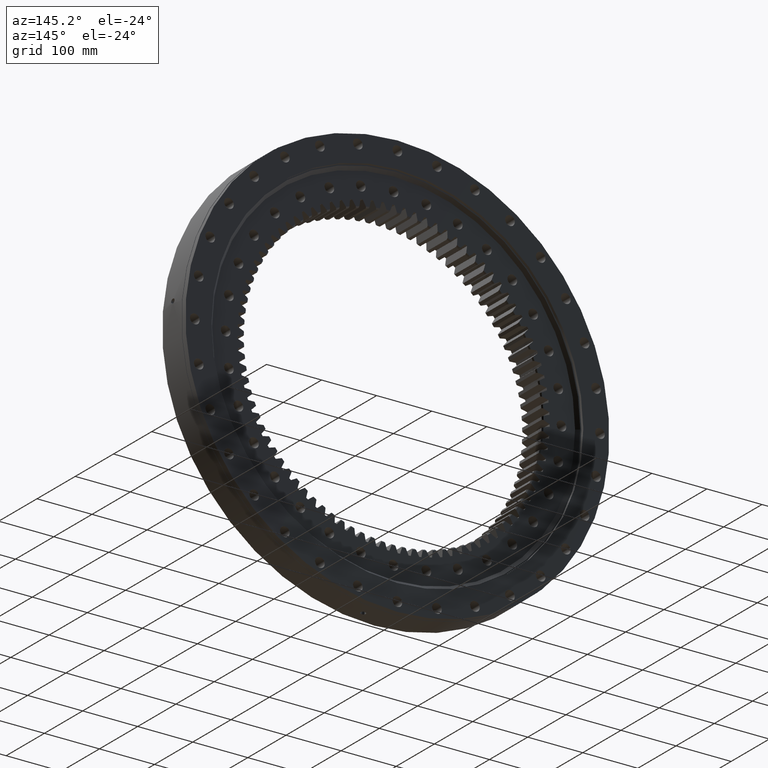
[diagram: clean part render]
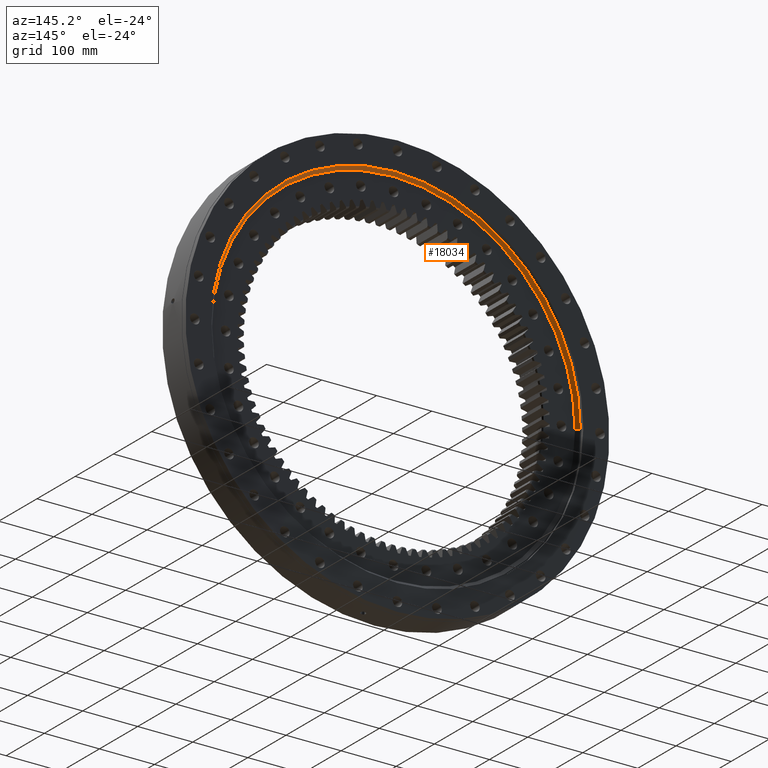
[diagram: same view with one face highlighted and labeled with its STEP entity id]
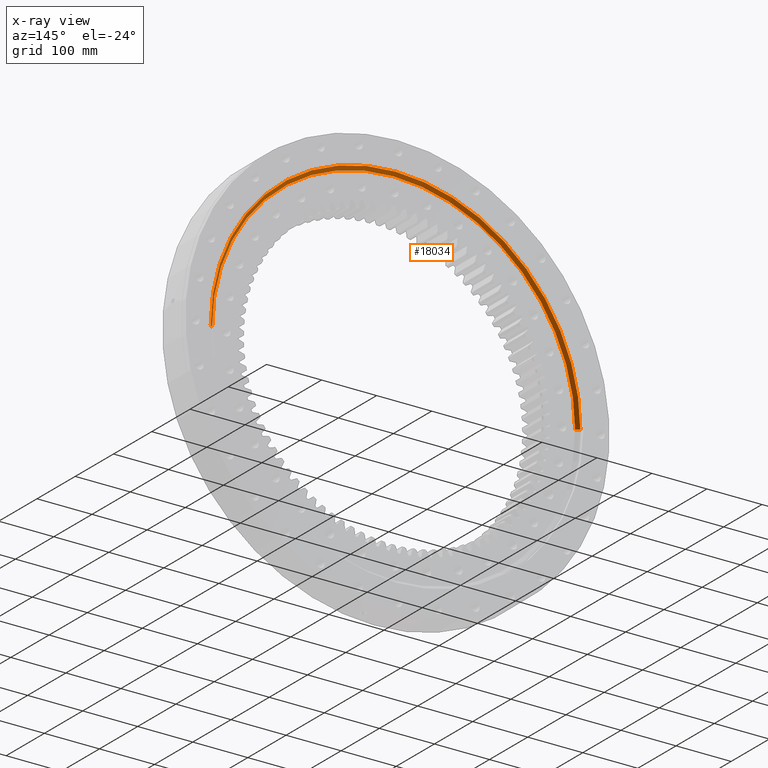
[diagram: x-ray of the same camera — body ghosted, the highlighted face saturated]
A machine part, auxiliary view. The second image highlights one B-rep face of the part: STEP entity #18034.
The next image is the same camera in x-ray: the body ghosted, the highlighted face saturated — about 0% of this face is hidden behind the body in this view.
In plain terms, the highlighted conical surface has half-angle 49.914 deg.
Its self-contained STEP definition (entity closure, byte-faithful):
#951 = EDGE_CURVE ( 'NONE', #22917, #1479, #21618, .T. ) ;
#1369 = DIRECTION ( 'NONE',  ( -1.000000000000000000, 1.860016236341476300E-016, 0.0000000000000000000 ) ) ;
#1479 = VERTEX_POINT ( 'NONE', #22789 ) ;
#1971 = DIRECTION ( 'NONE',  ( 0.7650765054985496600, 0.6439393921279607000, 9.369484935616412400E-017 ) ) ;
#2321 = ORIENTED_EDGE ( 'NONE', *, *, #951, .F. ) ;
#2376 = ORIENTED_EDGE ( 'NONE', *, *, #22585, .T. ) ;
#3179 = DIRECTION ( 'NONE',  ( -0.7650765054985495500, 0.6439393921279610300, 0.0000000000000000000 ) ) ;
#8836 = CARTESIAN_POINT ( 'NONE',  ( -3.770734612189843600E-015, 24.99999999999992500, 0.0000000000000000000 ) ) ;
#9217 = CONICAL_SURFACE ( 'NONE', #24586, 335.7499999999999400, 0.8711601305812984900 ) ;
#9485 = VERTEX_POINT ( 'NONE', #21632 ) ;
#9604 = FACE_OUTER_BOUND ( 'NONE', #25767, .T. ) ;
#11053 = CARTESIAN_POINT ( 'NONE',  ( -329.7500000000000000, 24.99999999999998600, 0.0000000000000000000 ) ) ;
#11188 = EDGE_CURVE ( 'NONE', #1479, #15367, #25065, .T. ) ;
#13199 = EDGE_CURVE ( 'NONE', #22917, #9485, #14559, .T. ) ;
#13451 = AXIS2_PLACEMENT_3D ( 'NONE', #8836, #22612, #22638 ) ;
#13797 = CARTESIAN_POINT ( 'NONE',  ( -2.843095299169379200E-015, 30.05000000000000100, 0.0000000000000000000 ) ) ;
#14508 = VECTOR ( 'NONE', #3179, 1000.000000000000000 ) ;
#14559 = LINE ( 'NONE', #22894, #14508 ) ;
#15367 = VERTEX_POINT ( 'NONE', #23732 ) ;
#17847 = DIRECTION ( 'NONE',  ( 1.836909530733565900E-016, 1.000000000000000000, -0.0000000000000000000 ) ) ;
#18034 = ADVANCED_FACE ( 'NONE', ( #9604 ), #9217, .F. ) ;
#18079 = CARTESIAN_POINT ( 'NONE',  ( -2.843095299169379200E-015, 30.05000000000000100, 0.0000000000000000000 ) ) ;
#18085 = DIRECTION ( 'NONE',  ( 1.836909530733565900E-016, 1.000000000000000000, -0.0000000000000000000 ) ) ;
#18135 = DIRECTION ( 'NONE',  ( -1.000000000000000000, 1.860016236341476300E-016, 0.0000000000000000000 ) ) ;
#18901 = AXIS2_PLACEMENT_3D ( 'NONE', #18079, #18085, #18135 ) ;
#18937 = CIRCLE ( 'NONE', #18901, 335.7499999999999400 ) ;
#21618 = CIRCLE ( 'NONE', #13451, 329.7500000000000000 ) ;
#21632 = CARTESIAN_POINT ( 'NONE',  ( -335.7499999999999400, 30.05000000000006100, 0.0000000000000000000 ) ) ;
#22010 = CARTESIAN_POINT ( 'NONE',  ( 335.7499999999999400, 30.04999999999993700, 4.111751628137237600E-014 ) ) ;
#22585 = EDGE_CURVE ( 'NONE', #9485, #15367, #18937, .T. ) ;
#22612 = DIRECTION ( 'NONE',  ( 1.836909530733565900E-016, 1.000000000000000000, -0.0000000000000000000 ) ) ;
#22638 = DIRECTION ( 'NONE',  ( -1.000000000000000000, 1.788645888800953400E-016, 0.0000000000000000000 ) ) ;
#22789 = CARTESIAN_POINT ( 'NONE',  ( 329.7500000000000000, 24.99999999999986500, 4.075012224162817100E-014 ) ) ;
#22894 = CARTESIAN_POINT ( 'NONE',  ( -335.7499999999999400, 30.05000000000006100, 0.0000000000000000000 ) ) ;
#22917 = VERTEX_POINT ( 'NONE', #11053 ) ;
#23179 = ORIENTED_EDGE ( 'NONE', *, *, #11188, .F. ) ;
#23732 = CARTESIAN_POINT ( 'NONE',  ( 335.7499999999999400, 30.04999999999993700, 4.111751628137237600E-014 ) ) ;
#23884 = ORIENTED_EDGE ( 'NONE', *, *, #13199, .T. ) ;
#24586 = AXIS2_PLACEMENT_3D ( 'NONE', #13797, #17847, #1369 ) ;
#25035 = VECTOR ( 'NONE', #1971, 1000.000000000000100 ) ;
#25065 = LINE ( 'NONE', #22010, #25035 ) ;
#25767 = EDGE_LOOP ( 'NONE', ( #23179, #2321, #23884, #2376 ) ) ;